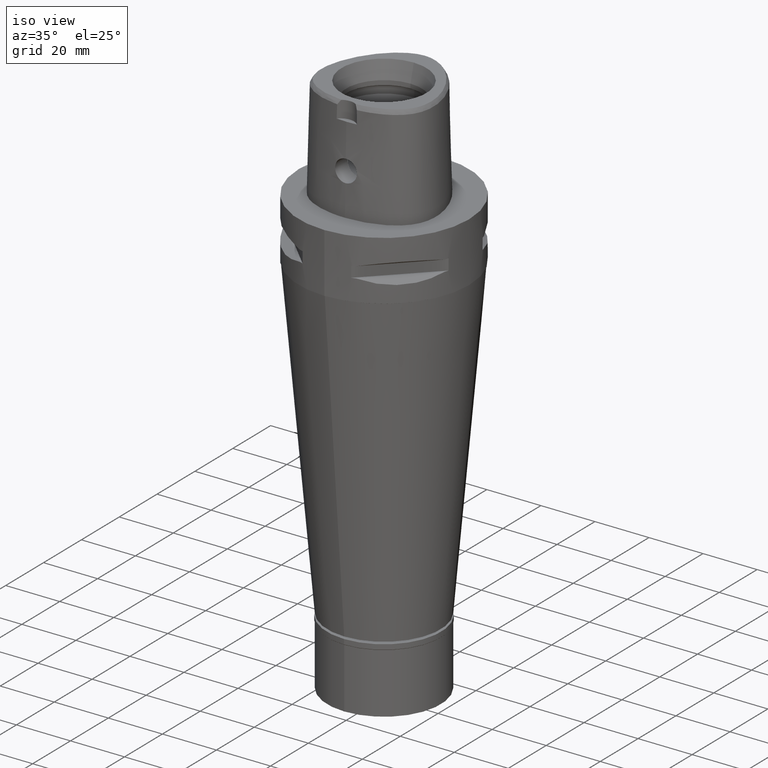
[diagram: clean part render]
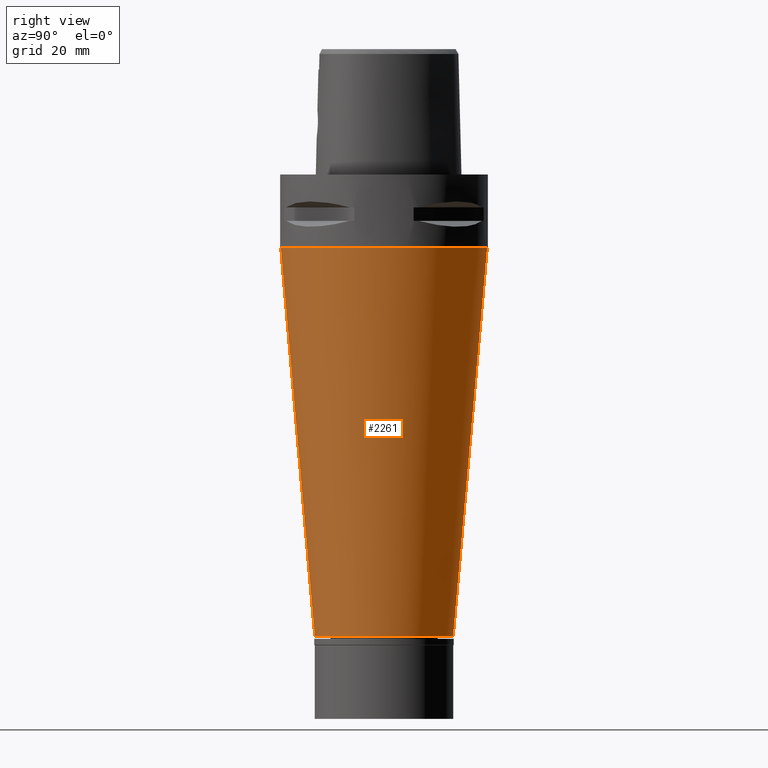
[diagram: tour spotlight — one face highlighted and labeled with its STEP entity id]
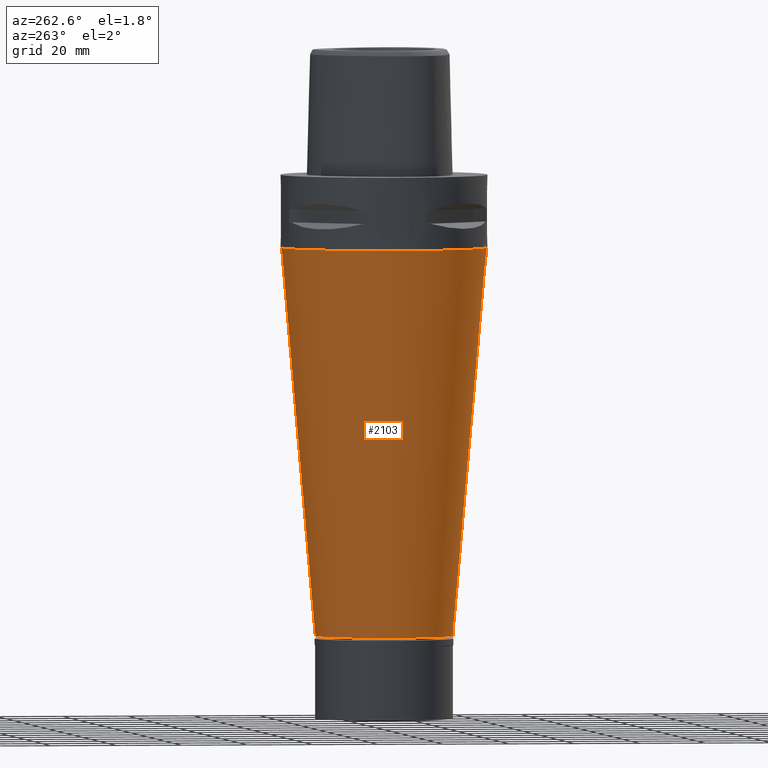
[diagram: tour spotlight — one face highlighted and labeled with its STEP entity id]
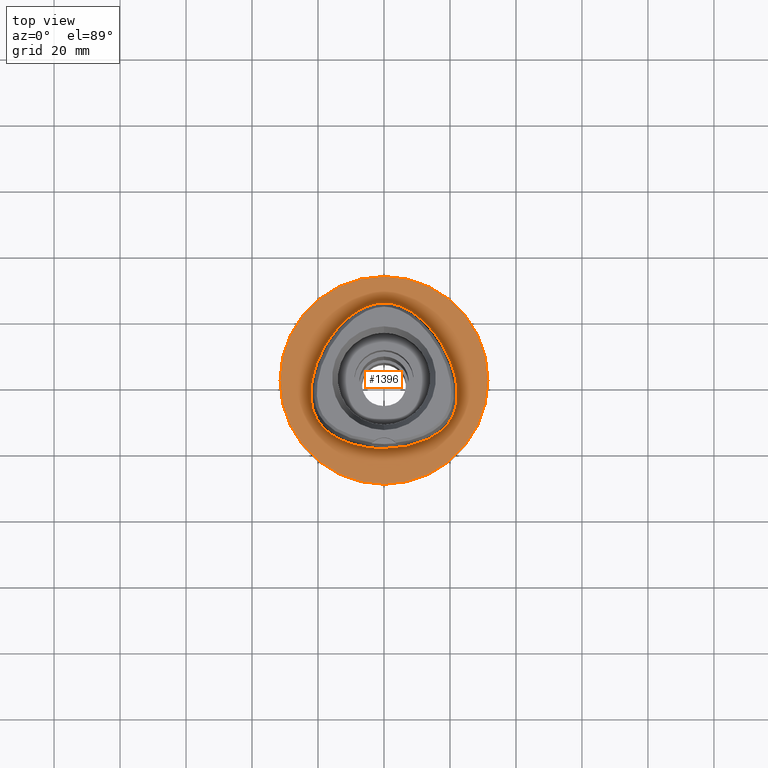
[diagram: tour spotlight — one face highlighted and labeled with its STEP entity id]
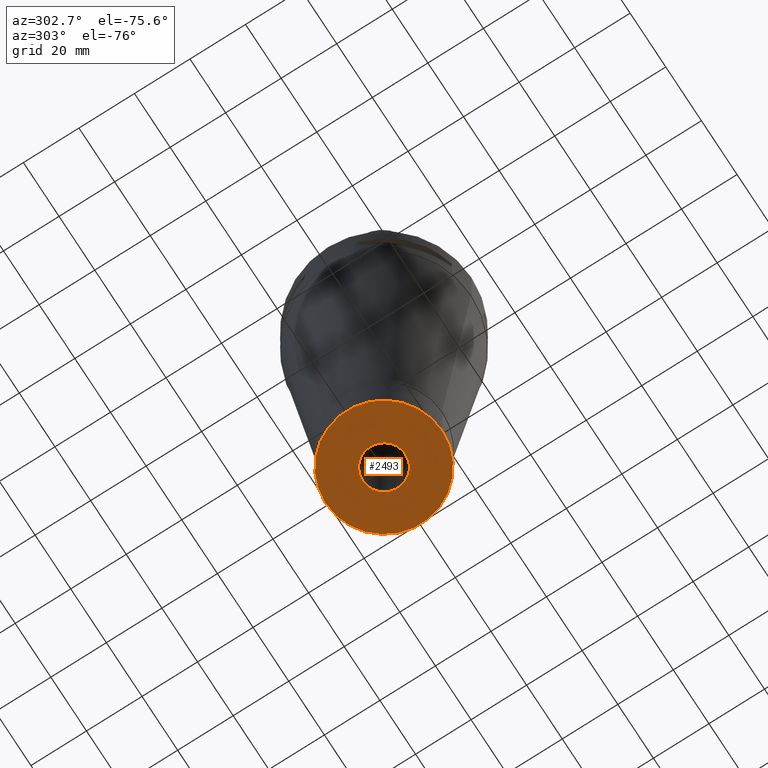
[diagram: tour spotlight — one face highlighted and labeled with its STEP entity id]
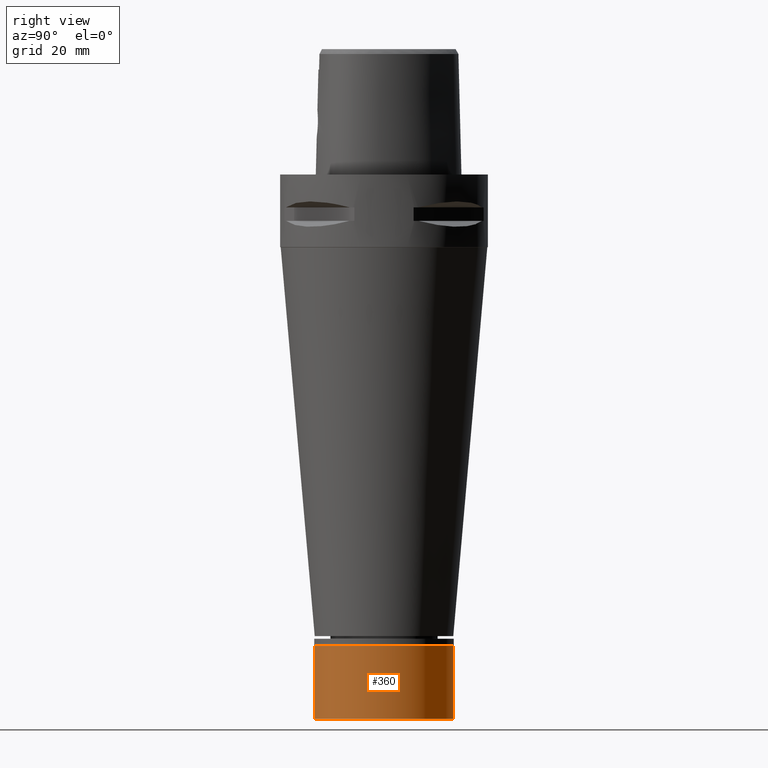
[diagram: tour spotlight — one face highlighted and labeled with its STEP entity id]
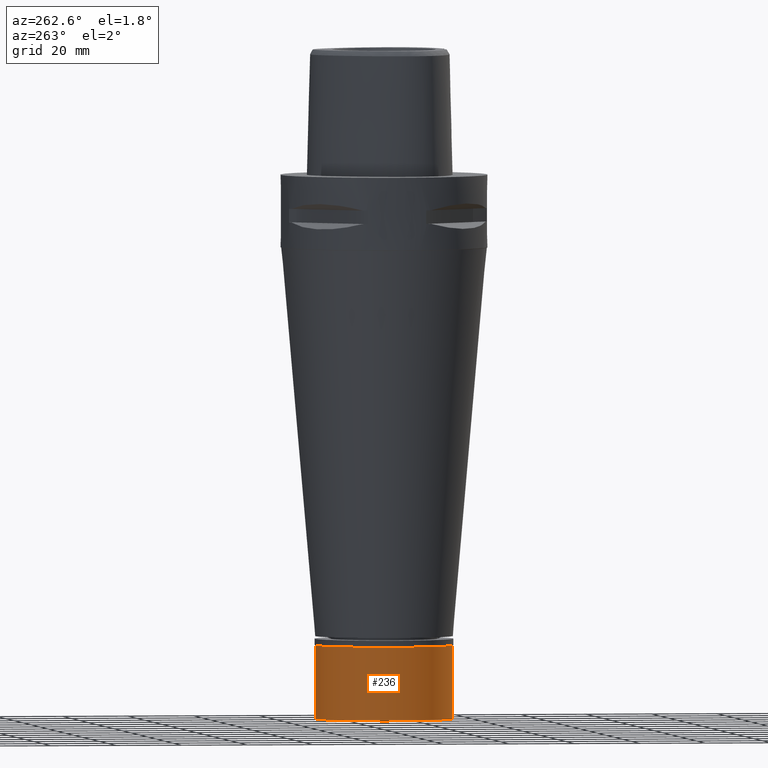
[diagram: tour spotlight — one face highlighted and labeled with its STEP entity id]
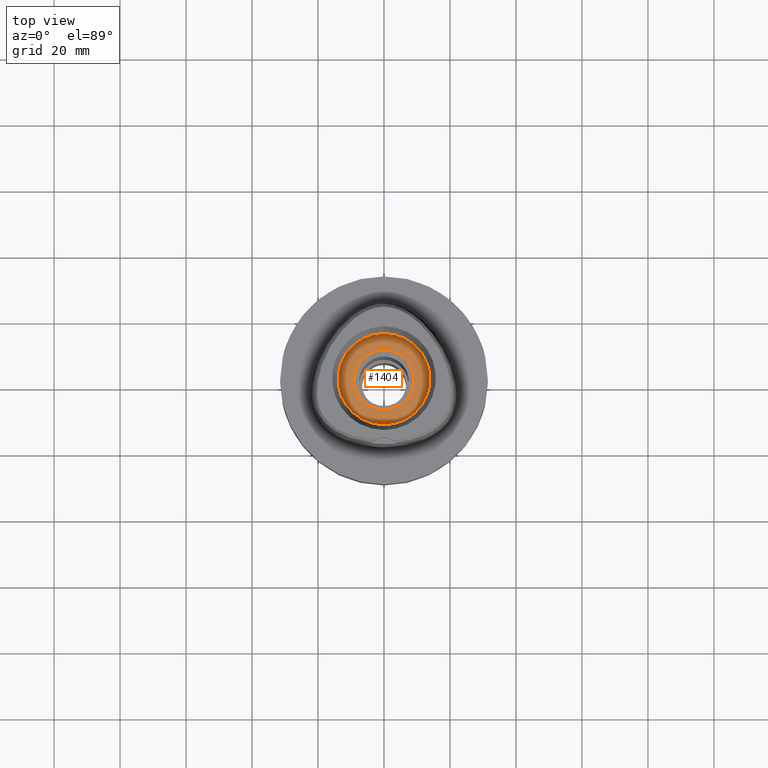
[diagram: tour spotlight — one face highlighted and labeled with its STEP entity id]
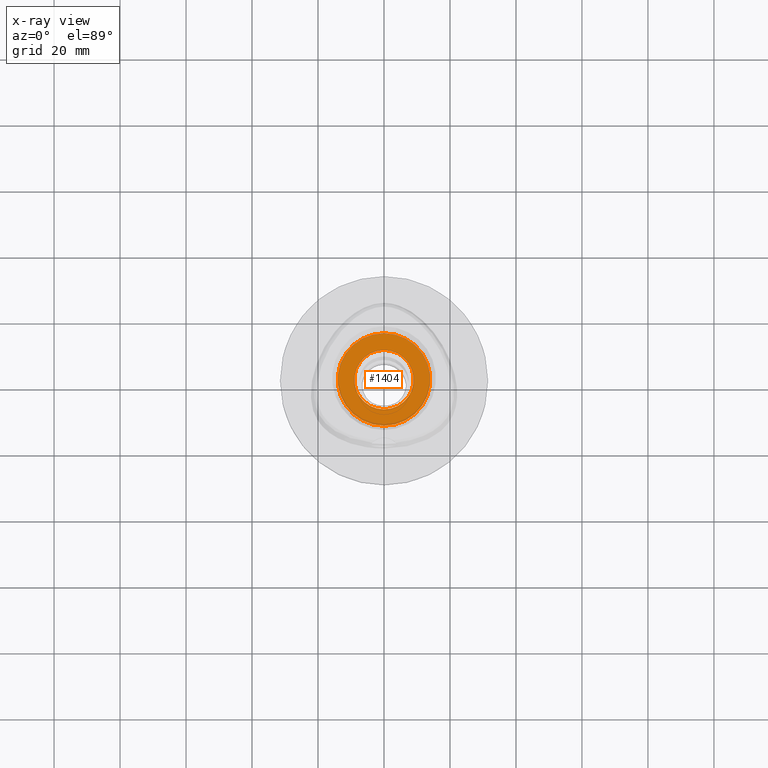
[diagram: x-ray of the same camera — body ghosted, this tour face saturated]
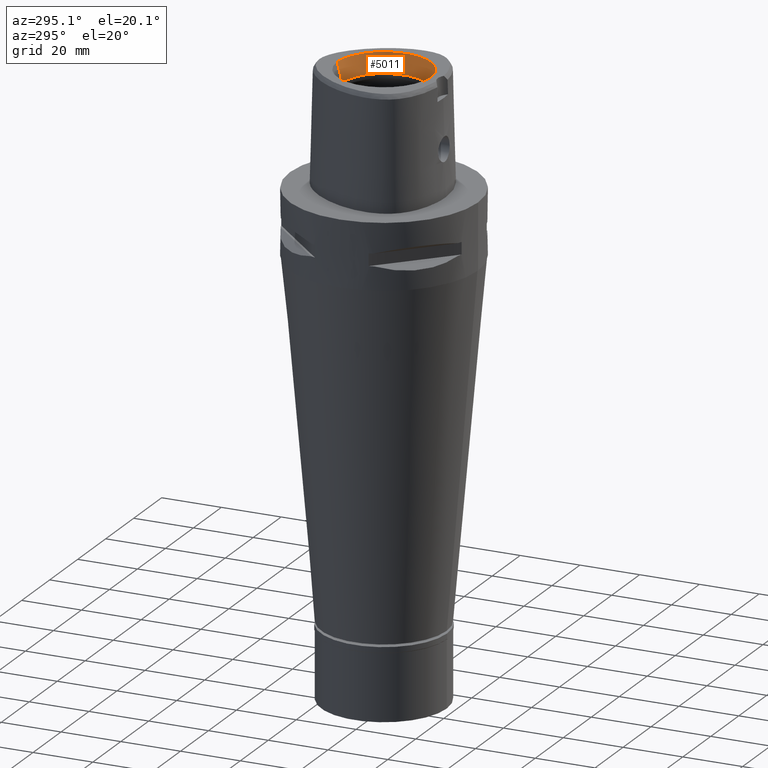
[diagram: tour spotlight — one face highlighted and labeled with its STEP entity id]
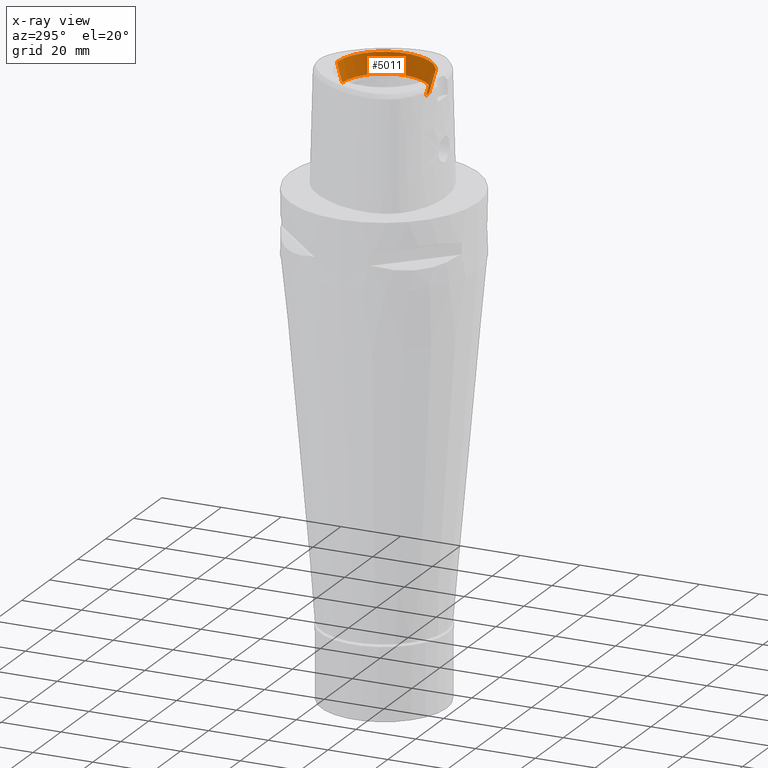
[diagram: x-ray of the same camera — body ghosted, this tour face saturated]
A machine part: a face-by-face anatomy tour. The part has 100 B-rep faces; the first image is the clean iso view, then the 8 largest visible faces are spotlighted one at a time (largest first), each with its STEP entity span.

Face 1 — right view, entity #2261. In plain terms, the highlighted conical surface has half-angle 5 deg.
Definition (entity closure, byte-faithful):
#21 = VECTOR ( 'NONE', #1304, 1000.000000000000114 ) ;
#27 = DIRECTION ( 'NONE',  ( 0.0000000000000000000, 1.000000000000000000, 0.0000000000000000000 ) ) ;
#143 = EDGE_LOOP ( 'NONE', ( #821, #178, #669, #1662 ) ) ;
#178 = ORIENTED_EDGE ( 'NONE', *, *, #697, .T. ) ;
#417 = LINE ( 'NONE', #2410, #3674 ) ;
#557 = EDGE_CURVE ( 'NONE', #2020, #3251, #4026, .T. ) ;
#571 = CARTESIAN_POINT ( 'NONE',  ( 0.0000000000000000000, -21.00000000000000000, -139.9000000000000057 ) ) ;
#577 = CONICAL_SURFACE ( 'NONE', #1965, 26.15308228167999971, 0.08726646259969973729 ) ;
#669 = ORIENTED_EDGE ( 'NONE', *, *, #4618, .T. ) ;
#697 = EDGE_CURVE ( 'NONE', #2020, #3028, #2833, .T. ) ;
#763 = CARTESIAN_POINT ( 'NONE',  ( 0.0000000000000000000, -31.30616456334999498, -22.10000000000000142 ) ) ;
#821 = ORIENTED_EDGE ( 'NONE', *, *, #557, .F. ) ;
#1304 = DIRECTION ( 'NONE',  ( 0.0000000000000000000, 0.08715574274764407992, -0.9961946980917467664 ) ) ;
#1595 = DIRECTION ( 'NONE',  ( 0.0000000000000000000, 0.0000000000000000000, 1.000000000000000000 ) ) ;
#1621 = AXIS2_PLACEMENT_3D ( 'NONE', #3159, #1595, #4698 ) ;
#1645 = AXIS2_PLACEMENT_3D ( 'NONE', #3274, #3171, #2071 ) ;
#1662 = ORIENTED_EDGE ( 'NONE', *, *, #4726, .F. ) ;
#1965 = AXIS2_PLACEMENT_3D ( 'NONE', #3527, #3227, #27 ) ;
#2020 = VERTEX_POINT ( 'NONE', #763 ) ;
#2071 = DIRECTION ( 'NONE',  ( 0.0000000000000000000, -1.000000000000000000, 0.0000000000000000000 ) ) ;
#2131 = CARTESIAN_POINT ( 'NONE',  ( 0.0000000000000000000, 21.00000000000000000, -139.9000000000000057 ) ) ;
#2261 = ADVANCED_FACE ( 'NONE', ( #2806 ), #577, .T. ) ;
#2354 = VERTEX_POINT ( 'NONE', #2131 ) ;
#2410 = CARTESIAN_POINT ( 'NONE',  ( 0.0000000000000000000, 31.30616456334999498, -22.10000000000000142 ) ) ;
#2806 = FACE_OUTER_BOUND ( 'NONE', #143, .T. ) ;
#2833 = LINE ( 'NONE', #4071, #21 ) ;
#3028 = VERTEX_POINT ( 'NONE', #571 ) ;
#3159 = CARTESIAN_POINT ( 'NONE',  ( 0.0000000000000000000, 0.0000000000000000000, -139.9000000000000057 ) ) ;
#3171 = DIRECTION ( 'NONE',  ( 0.0000000000000000000, 0.0000000000000000000, 1.000000000000000000 ) ) ;
#3227 = DIRECTION ( 'NONE',  ( 0.0000000000000000000, 0.0000000000000000000, 1.000000000000000000 ) ) ;
#3251 = VERTEX_POINT ( 'NONE', #4341 ) ;
#3274 = CARTESIAN_POINT ( 'NONE',  ( 0.0000000000000000000, 0.0000000000000000000, -22.10000000000000142 ) ) ;
#3527 = CARTESIAN_POINT ( 'NONE',  ( 0.0000000000000000000, 0.0000000000000000000, -81.00000000000000000 ) ) ;
#3674 = VECTOR ( 'NONE', #4338, 1000.000000000000114 ) ;
#4026 = CIRCLE ( 'NONE', #1645, 31.30616456335999587 ) ;
#4071 = CARTESIAN_POINT ( 'NONE',  ( 0.0000000000000000000, -31.30616456334999498, -22.10000000000000142 ) ) ;
#4276 = CIRCLE ( 'NONE', #1621, 21.00000000000000000 ) ;
#4338 = DIRECTION ( 'NONE',  ( 0.0000000000000000000, -0.08715574274764407992, -0.9961946980917467664 ) ) ;
#4341 = CARTESIAN_POINT ( 'NONE',  ( 0.0000000000000000000, 31.30616456334999498, -22.10000000000000142 ) ) ;
#4618 = EDGE_CURVE ( 'NONE', #3028, #2354, #4276, .T. ) ;
#4698 = DIRECTION ( 'NONE',  ( 0.0000000000000000000, -1.000000000000000000, 0.0000000000000000000 ) ) ;
#4726 = EDGE_CURVE ( 'NONE', #3251, #2354, #417, .T. ) ;

Face 2 — auxiliary view, entity #2103. In plain terms, the highlighted conical surface has half-angle 5 deg.
Definition (entity closure, byte-faithful):
#21 = VECTOR ( 'NONE', #1304, 1000.000000000000114 ) ;
#34 = ORIENTED_EDGE ( 'NONE', *, *, #4726, .T. ) ;
#351 = CARTESIAN_POINT ( 'NONE',  ( 0.0000000000000000000, 0.0000000000000000000, -81.00000000000000000 ) ) ;
#417 = LINE ( 'NONE', #2410, #3674 ) ;
#571 = CARTESIAN_POINT ( 'NONE',  ( 0.0000000000000000000, -21.00000000000000000, -139.9000000000000057 ) ) ;
#697 = EDGE_CURVE ( 'NONE', #2020, #3028, #2833, .T. ) ;
#751 = ORIENTED_EDGE ( 'NONE', *, *, #697, .F. ) ;
#763 = CARTESIAN_POINT ( 'NONE',  ( 0.0000000000000000000, -31.30616456334999498, -22.10000000000000142 ) ) ;
#1102 = DIRECTION ( 'NONE',  ( 0.0000000000000000000, 1.000000000000000000, 0.0000000000000000000 ) ) ;
#1161 = CONICAL_SURFACE ( 'NONE', #4994, 26.15308228167999971, 0.08726646259969973729 ) ;
#1295 = DIRECTION ( 'NONE',  ( 0.0000000000000000000, 0.0000000000000000000, 1.000000000000000000 ) ) ;
#1304 = DIRECTION ( 'NONE',  ( 0.0000000000000000000, 0.08715574274764407992, -0.9961946980917467664 ) ) ;
#1376 = AXIS2_PLACEMENT_3D ( 'NONE', #2026, #4035, #1615 ) ;
#1467 = DIRECTION ( 'NONE',  ( 0.0000000000000000000, 0.0000000000000000000, 1.000000000000000000 ) ) ;
#1479 = EDGE_LOOP ( 'NONE', ( #2416, #751, #2861, #34 ) ) ;
#1615 = DIRECTION ( 'NONE',  ( 0.0000000000000000000, -1.000000000000000000, 0.0000000000000000000 ) ) ;
#1716 = CARTESIAN_POINT ( 'NONE',  ( 0.0000000000000000000, 0.0000000000000000000, -139.9000000000000057 ) ) ;
#1950 = CIRCLE ( 'NONE', #1376, 31.30616456334999498 ) ;
#2020 = VERTEX_POINT ( 'NONE', #763 ) ;
#2026 = CARTESIAN_POINT ( 'NONE',  ( 0.0000000000000000000, 0.0000000000000000000, -22.10000000000000142 ) ) ;
#2103 = ADVANCED_FACE ( 'NONE', ( #3004 ), #1161, .T. ) ;
#2131 = CARTESIAN_POINT ( 'NONE',  ( 0.0000000000000000000, 21.00000000000000000, -139.9000000000000057 ) ) ;
#2354 = VERTEX_POINT ( 'NONE', #2131 ) ;
#2410 = CARTESIAN_POINT ( 'NONE',  ( 0.0000000000000000000, 31.30616456334999498, -22.10000000000000142 ) ) ;
#2416 = ORIENTED_EDGE ( 'NONE', *, *, #3461, .T. ) ;
#2833 = LINE ( 'NONE', #4071, #21 ) ;
#2861 = ORIENTED_EDGE ( 'NONE', *, *, #4687, .T. ) ;
#2877 = AXIS2_PLACEMENT_3D ( 'NONE', #1716, #1295, #4894 ) ;
#3004 = FACE_OUTER_BOUND ( 'NONE', #1479, .T. ) ;
#3028 = VERTEX_POINT ( 'NONE', #571 ) ;
#3251 = VERTEX_POINT ( 'NONE', #4341 ) ;
#3461 = EDGE_CURVE ( 'NONE', #2354, #3028, #3951, .T. ) ;
#3674 = VECTOR ( 'NONE', #4338, 1000.000000000000114 ) ;
#3951 = CIRCLE ( 'NONE', #2877, 21.00000000000000000 ) ;
#4035 = DIRECTION ( 'NONE',  ( 0.0000000000000000000, 0.0000000000000000000, -1.000000000000000000 ) ) ;
#4071 = CARTESIAN_POINT ( 'NONE',  ( 0.0000000000000000000, -31.30616456334999498, -22.10000000000000142 ) ) ;
#4338 = DIRECTION ( 'NONE',  ( 0.0000000000000000000, -0.08715574274764407992, -0.9961946980917467664 ) ) ;
#4341 = CARTESIAN_POINT ( 'NONE',  ( 0.0000000000000000000, 31.30616456334999498, -22.10000000000000142 ) ) ;
#4687 = EDGE_CURVE ( 'NONE', #2020, #3251, #1950, .T. ) ;
#4726 = EDGE_CURVE ( 'NONE', #3251, #2354, #417, .T. ) ;
#4894 = DIRECTION ( 'NONE',  ( 0.0000000000000000000, 1.000000000000000000, 0.0000000000000000000 ) ) ;
#4994 = AXIS2_PLACEMENT_3D ( 'NONE', #351, #1467, #1102 ) ;

Face 3 — top view, entity #1396. In plain terms, the highlighted planar face has unit normal (0, 0, -1).
Definition (entity closure, byte-faithful):
#38 = CARTESIAN_POINT ( 'NONE',  ( -0.8548392447311998765, 23.47500003422294768, -1.368989697888818927E-06 ) ) ;
#114 = CARTESIAN_POINT ( 'NONE',  ( -11.23259757903171518, -18.89324221984548302, -1.368989697888818927E-06 ) ) ;
#153 = CARTESIAN_POINT ( 'NONE',  ( 6.341471019211626370, -20.29812500000441844, 8.272462576064400094E-14 ) ) ;
#310 = DIRECTION ( 'NONE',  ( 0.0000000000000000000, 0.0000000000000000000, -1.000000000000000000 ) ) ;
#340 = AXIS2_PLACEMENT_3D ( 'NONE', #401, #3911, #704 ) ;
#350 = B_SPLINE_CURVE_WITH_KNOTS ( 'NONE', 3,
 ( #4744, #38, #2024, #472, #773, #4775, #1566, #3541, #2328, #4004, #2817, #3621, #496, #4389, #2738, #415, #2432, #2051, #2384, #114, #1593, #448, #3157 ),
 .UNSPECIFIED., .F., .F.,
 ( 4, 1, 1, 1, 1, 1, 1, 1, 1, 1, 1, 1, 1, 1, 1, 1, 1, 1, 1, 1, 4 ),
 ( 0.0000000000000000000, 0.04166666666724999635, 0.08333333333387001052, 0.1250000000004999889, 0.1666666666672000086, 0.2500000000004000134, 0.3333333333335999904, 0.4166666666670000296, 0.5000000000001999512, 0.5416666666668999985, 0.5833333333333999837, 0.6250000000001000311, 0.6458333333333999837, 0.6666666666667000474, 0.6875000000000000000, 0.7083333333333000637, 0.7500000000000000000, 0.7916666666666000163, 0.8333333333332000326, 0.9166666666664999852, 1.000000000000000000 ),
 .UNSPECIFIED. ) ;
#401 = CARTESIAN_POINT ( 'NONE',  ( 0.0000000000000000000, 0.0000000000000000000, 0.0000000000000000000 ) ) ;
#415 = CARTESIAN_POINT ( 'NONE',  ( -19.64947368636820002, -12.82525392640435946, -1.368989697888818927E-06 ) ) ;
#448 = CARTESIAN_POINT ( 'NONE',  ( -2.113823675098791544, -20.67500003422133759, -1.368989697888818927E-06 ) ) ;
#472 = CARTESIAN_POINT ( 'NONE',  ( -5.098437030057756836, 22.52602542253844220, -1.368989697888818927E-06 ) ) ;
#496 = CARTESIAN_POINT ( 'NONE',  ( -21.55524829301685941, -8.996025400410394113, -1.368989697888818927E-06 ) ) ;
#594 = CARTESIAN_POINT ( 'NONE',  ( 22.05732874321672554, -6.847636718749787299, 8.272462576064398831E-14 ) ) ;
#704 = DIRECTION ( 'NONE',  ( 0.0000000000000000000, -1.000000000000000000, 0.0000000000000000000 ) ) ;
#723 = DIRECTION ( 'NONE',  ( 0.0000000000000000000, -1.000000000000000000, 0.0000000000000000000 ) ) ;
#773 = CARTESIAN_POINT ( 'NONE',  ( -7.571159451690396835, 21.31457034212785828, -1.368989697888818927E-06 ) ) ;
#870 = EDGE_LOOP ( 'NONE', ( #3656, #1780 ) ) ;
#936 = CARTESIAN_POINT ( 'NONE',  ( 20.74942740879365033, 4.657187499999517755, 8.272462576064398831E-14 ) ) ;
#976 = CARTESIAN_POINT ( 'NONE',  ( 14.67337964419171747, -17.21410156250057355, 8.272462576064398831E-14 ) ) ;
#1030 = CARTESIAN_POINT ( 'NONE',  ( 2.113823673067903197, -20.67499999999817462, 8.272462576064398831E-14 ) ) ;
#1314 = CARTESIAN_POINT ( 'NONE',  ( 18.56841065141249203, -14.16937988280826666, 8.272462576064398831E-14 ) ) ;
#1316 = DIRECTION ( 'NONE',  ( 0.0000000000000000000, 1.000000000000000000, 0.0000000000000000000 ) ) ;
#1339 = CARTESIAN_POINT ( 'NONE',  ( 3.799129736973999684E-11, 23.47499999999000053, 6.972200594645999482E-14 ) ) ;
#1379 = CARTESIAN_POINT ( 'NONE',  ( 20.93173252211499857, -10.60431640624921812, 8.272462576064398831E-14 ) ) ;
#1396 = ADVANCED_FACE ( 'NONE', ( #4731, #4216 ), #3887, .F. ) ;
#1566 = CARTESIAN_POINT ( 'NONE',  ( -14.40795641587533815, 15.64093752220498779, -1.368989697888818927E-06 ) ) ;
#1593 = CARTESIAN_POINT ( 'NONE',  ( -6.341471025292675812, -20.29812503388158618, -1.368989697888818927E-06 ) ) ;
#1679 = ORIENTED_EDGE ( 'NONE', *, *, #2747, .F. ) ;
#1764 = CARTESIAN_POINT ( 'NONE',  ( 7.571159434350515305, 21.31457031249845713, 8.272462576064398831E-14 ) ) ;
#1780 = ORIENTED_EDGE ( 'NONE', *, *, #4948, .F. ) ;
#2024 = CARTESIAN_POINT ( 'NONE',  ( -2.564517733991961368, 23.29328128370302053, -1.368989697888818927E-06 ) ) ;
#2051 = CARTESIAN_POINT ( 'NONE',  ( -16.95889174717596859, -15.67838869888941034, -1.368989697888818927E-06 ) ) ;
#2116 = VERTEX_POINT ( 'NONE', #2647 ) ;
#2147 = CARTESIAN_POINT ( 'NONE',  ( 22.24453907854652357, -4.100468750000057838, 8.272462576064398831E-14 ) ) ;
#2238 = B_SPLINE_CURVE_WITH_KNOTS ( 'NONE', 3,
 ( #4441, #1030, #153, #4825, #976, #3356, #1314, #2866, #2528, #1379, #4058, #594, #2147, #2890, #936, #4922, #3719, #3287, #1764, #2933, #4851, #3331, #1339 ),
 .UNSPECIFIED., .F., .F.,
 ( 4, 1, 1, 1, 1, 1, 1, 1, 1, 1, 1, 1, 1, 1, 1, 1, 1, 1, 1, 1, 4 ),
 ( 0.0000000000000000000, 0.08333333333337000770, 0.1666666666667000196, 0.2083333333333000081, 0.2500000000000000000, 0.2916666666666999919, 0.3124999999998999689, 0.3333333333332000326, 0.3541666666666000163, 0.3749999999998999689, 0.4166666666666000163, 0.4583333333332000326, 0.4999999999998999689, 0.5833333333331000015, 0.6666666666664999852, 0.7499999999998000488, 0.8333333333329999704, 0.8749999999997000177, 0.9166666666664000651, 0.9583333333329999704, 1.000000000000000000 ),
 .UNSPECIFIED. ) ;
#2293 = AXIS2_PLACEMENT_3D ( 'NONE', #2845, #3721, #1316 ) ;
#2328 = CARTESIAN_POINT ( 'NONE',  ( -20.74942744117980808, 4.657187511669165225, -1.368989697888818927E-06 ) ) ;
#2384 = CARTESIAN_POINT ( 'NONE',  ( -14.67337966118758885, -17.21410159233150949, -1.368989697888818927E-06 ) ) ;
#2432 = CARTESIAN_POINT ( 'NONE',  ( -18.56841067635331655, -14.16937990642837164, -1.368989697888818927E-06 ) ) ;
#2528 = CARTESIAN_POINT ( 'NONE',  ( 20.34961798556690837, -11.74885742187212223, 8.272462576064398831E-14 ) ) ;
#2647 = CARTESIAN_POINT ( 'NONE',  ( 3.799129736973999684E-11, 23.47499999999000053, 6.972200594645999482E-14 ) ) ;
#2686 = ORIENTED_EDGE ( 'NONE', *, *, #3333, .F. ) ;
#2703 = AXIS2_PLACEMENT_3D ( 'NONE', #5059, #310, #723 ) ;
#2738 = CARTESIAN_POINT ( 'NONE',  ( -20.34961801526063141, -11.74885743901240431, -1.368989697888818927E-06 ) ) ;
#2747 = EDGE_CURVE ( 'NONE', #3342, #4889, #4182, .T. ) ;
#2817 = CARTESIAN_POINT ( 'NONE',  ( -22.24453911287769614, -4.100468749798530155, -1.368989697888818927E-06 ) ) ;
#2845 = CARTESIAN_POINT ( 'NONE',  ( 0.0000000000000000000, 0.0000000000000000000, 0.0000000000000000000 ) ) ;
#2866 = CARTESIAN_POINT ( 'NONE',  ( 19.64947365863153905, -12.82525390625595918, 8.272462576064398831E-14 ) ) ;
#2890 = CARTESIAN_POINT ( 'NONE',  ( 21.97832647786808380, -0.2810937499999818789, 8.272462576064398831E-14 ) ) ;
#2933 = CARTESIAN_POINT ( 'NONE',  ( 5.098437017283806050, 22.52602539062440812, 8.272462576064398831E-14 ) ) ;
#3157 = CARTESIAN_POINT ( 'NONE',  ( -5.544117086856001062E-12, -20.67499999999999716, 7.268260067878999272E-14 ) ) ;
#3239 = CARTESIAN_POINT ( 'NONE',  ( -5.544117086856001062E-12, -20.67499999999999716, 7.268260067878999272E-14 ) ) ;
#3263 = CARTESIAN_POINT ( 'NONE',  ( 0.0000000000000000000, 31.50000000000000000, 0.0000000000000000000 ) ) ;
#3287 = CARTESIAN_POINT ( 'NONE',  ( 10.74572891058595836, 19.17433593750250154, 8.272462576064398831E-14 ) ) ;
#3331 = CARTESIAN_POINT ( 'NONE',  ( 0.8548392423473054613, 23.47500000000443876, 8.272462576064398831E-14 ) ) ;
#3333 = EDGE_CURVE ( 'NONE', #4889, #3342, #4107, .T. ) ;
#3342 = VERTEX_POINT ( 'NONE', #4082 ) ;
#3356 = CARTESIAN_POINT ( 'NONE',  ( 16.95889172593307848, -15.67838867187729868, 8.272462576064398831E-14 ) ) ;
#3541 = CARTESIAN_POINT ( 'NONE',  ( -18.06826691505381177, 10.43171876720562530, -1.368989697888818927E-06 ) ) ;
#3621 = CARTESIAN_POINT ( 'NONE',  ( -22.05732877724006968, -6.847636723639458189, -1.368989697888818927E-06 ) ) ;
#3656 = ORIENTED_EDGE ( 'NONE', *, *, #3803, .F. ) ;
#3719 = CARTESIAN_POINT ( 'NONE',  ( 14.40795638957902547, 15.64093750000789385, 8.272462576064398831E-14 ) ) ;
#3721 = DIRECTION ( 'NONE',  ( 0.0000000000000000000, 0.0000000000000000000, -1.000000000000000000 ) ) ;
#3803 = EDGE_CURVE ( 'NONE', #2116, #3806, #350, .T. ) ;
#3806 = VERTEX_POINT ( 'NONE', #3239 ) ;
#3887 = PLANE ( 'NONE',  #340 ) ;
#3911 = DIRECTION ( 'NONE',  ( 0.0000000000000000000, 0.0000000000000000000, -1.000000000000000000 ) ) ;
#4004 = CARTESIAN_POINT ( 'NONE',  ( -21.97832651175645324, -0.2810937440124895992, -1.368989697888818927E-06 ) ) ;
#4058 = CARTESIAN_POINT ( 'NONE',  ( 21.55524826009921924, -8.996025390625055351, 8.272462576064398831E-14 ) ) ;
#4082 = CARTESIAN_POINT ( 'NONE',  ( 0.0000000000000000000, -31.50000000000000000, 0.0000000000000000000 ) ) ;
#4107 = CIRCLE ( 'NONE', #2293, 31.50000000000000000 ) ;
#4182 = CIRCLE ( 'NONE', #2703, 31.50000000000000000 ) ;
#4212 = EDGE_LOOP ( 'NONE', ( #2686, #1679 ) ) ;
#4216 = FACE_BOUND ( 'NONE', #870, .T. ) ;
#4389 = CARTESIAN_POINT ( 'NONE',  ( -20.93173255342915340, -10.60431642019623766, -1.368989697888818927E-06 ) ) ;
#4441 = CARTESIAN_POINT ( 'NONE',  ( -5.544117086856001062E-12, -20.67499999999999716, 7.268260067878999272E-14 ) ) ;
#4731 = FACE_OUTER_BOUND ( 'NONE', #4212, .T. ) ;
#4744 = CARTESIAN_POINT ( 'NONE',  ( 3.799129736973999684E-11, 23.47499999999000053, 6.972200594645999482E-14 ) ) ;
#4775 = CARTESIAN_POINT ( 'NONE',  ( -10.74572893272436502, 19.17433596385689754, -1.368989697888818927E-06 ) ) ;
#4825 = CARTESIAN_POINT ( 'NONE',  ( 11.23259756727171599, -18.89324218749731443, 8.272462576064398831E-14 ) ) ;
#4851 = CARTESIAN_POINT ( 'NONE',  ( 2.564517726975326983, 23.29328124999574356, 8.272462576064398831E-14 ) ) ;
#4889 = VERTEX_POINT ( 'NONE', #3263 ) ;
#4922 = CARTESIAN_POINT ( 'NONE',  ( 18.06826688526536628, 10.43171875000152404, 8.272462576064398831E-14 ) ) ;
#4948 = EDGE_CURVE ( 'NONE', #3806, #2116, #2238, .T. ) ;
#5059 = CARTESIAN_POINT ( 'NONE',  ( 0.0000000000000000000, 0.0000000000000000000, 0.0000000000000000000 ) ) ;

Face 4 — auxiliary view, entity #2493. In plain terms, the highlighted planar face has unit normal (0, 0, -1).
Definition (entity closure, byte-faithful):
#24 = CARTESIAN_POINT ( 'NONE',  ( 0.0000000000000000000, 0.0000000000000000000, -24.29999999999999716 ) ) ;
#95 = CIRCLE ( 'NONE', #2939, 21.00000000000000000 ) ;
#194 = EDGE_LOOP ( 'NONE', ( #4677, #534 ) ) ;
#288 = DIRECTION ( 'NONE',  ( 0.0000000000000000000, 0.0000000000000000000, 1.000000000000000000 ) ) ;
#329 = CIRCLE ( 'NONE', #992, 7.700000000000000178 ) ;
#530 = EDGE_CURVE ( 'NONE', #1504, #3281, #329, .T. ) ;
#534 = ORIENTED_EDGE ( 'NONE', *, *, #1386, .F. ) ;
#547 = CARTESIAN_POINT ( 'NONE',  ( 0.0000000000000000000, 7.700000000000000178, -24.29999999999999716 ) ) ;
#624 = DIRECTION ( 'NONE',  ( 0.0000000000000000000, 0.0000000000000000000, -1.000000000000000000 ) ) ;
#636 = CARTESIAN_POINT ( 'NONE',  ( 0.0000000000000000000, 21.00000000000000000, -24.29999999999999716 ) ) ;
#649 = CARTESIAN_POINT ( 'NONE',  ( 0.0000000000000000000, -21.00000000000000000, -24.29999999999999716 ) ) ;
#943 = CARTESIAN_POINT ( 'NONE',  ( 0.0000000000000000000, 0.0000000000000000000, -24.29999999999999716 ) ) ;
#992 = AXIS2_PLACEMENT_3D ( 'NONE', #1684, #4051, #2015 ) ;
#1178 = ORIENTED_EDGE ( 'NONE', *, *, #530, .F. ) ;
#1386 = EDGE_CURVE ( 'NONE', #2661, #4790, #1795, .T. ) ;
#1438 = DIRECTION ( 'NONE',  ( 0.0000000000000000000, 1.000000000000000000, 0.0000000000000000000 ) ) ;
#1504 = VERTEX_POINT ( 'NONE', #3114 ) ;
#1562 = AXIS2_PLACEMENT_3D ( 'NONE', #943, #624, #2495 ) ;
#1684 = CARTESIAN_POINT ( 'NONE',  ( 0.0000000000000000000, 0.0000000000000000000, -24.29999999999999716 ) ) ;
#1768 = DIRECTION ( 'NONE',  ( 0.0000000000000000000, 1.000000000000000000, 0.0000000000000000000 ) ) ;
#1774 = ORIENTED_EDGE ( 'NONE', *, *, #4351, .F. ) ;
#1795 = CIRCLE ( 'NONE', #2531, 21.00000000000000000 ) ;
#1931 = DIRECTION ( 'NONE',  ( 0.0000000000000000000, -1.000000000000000000, 0.0000000000000000000 ) ) ;
#2015 = DIRECTION ( 'NONE',  ( 0.0000000000000000000, -1.000000000000000000, 0.0000000000000000000 ) ) ;
#2067 = CIRCLE ( 'NONE', #4932, 7.700000000000000178 ) ;
#2107 = EDGE_LOOP ( 'NONE', ( #1774, #1178 ) ) ;
#2493 = ADVANCED_FACE ( 'NONE', ( #4139, #2897 ), #2879, .T. ) ;
#2495 = DIRECTION ( 'NONE',  ( 0.0000000000000000000, -1.000000000000000000, 0.0000000000000000000 ) ) ;
#2531 = AXIS2_PLACEMENT_3D ( 'NONE', #24, #3059, #1931 ) ;
#2615 = CARTESIAN_POINT ( 'NONE',  ( 0.0000000000000000000, 0.0000000000000000000, -24.29999999999999716 ) ) ;
#2661 = VERTEX_POINT ( 'NONE', #649 ) ;
#2699 = EDGE_CURVE ( 'NONE', #4790, #2661, #95, .T. ) ;
#2879 = PLANE ( 'NONE',  #1562 ) ;
#2897 = FACE_BOUND ( 'NONE', #2107, .T. ) ;
#2939 = AXIS2_PLACEMENT_3D ( 'NONE', #2615, #288, #1438 ) ;
#3059 = DIRECTION ( 'NONE',  ( 0.0000000000000000000, 0.0000000000000000000, 1.000000000000000000 ) ) ;
#3114 = CARTESIAN_POINT ( 'NONE',  ( 0.0000000000000000000, -7.700000000000000178, -24.29999999999999716 ) ) ;
#3281 = VERTEX_POINT ( 'NONE', #547 ) ;
#4051 = DIRECTION ( 'NONE',  ( 0.0000000000000000000, 0.0000000000000000000, -1.000000000000000000 ) ) ;
#4110 = CARTESIAN_POINT ( 'NONE',  ( 0.0000000000000000000, 0.0000000000000000000, -24.29999999999999716 ) ) ;
#4139 = FACE_OUTER_BOUND ( 'NONE', #194, .T. ) ;
#4351 = EDGE_CURVE ( 'NONE', #3281, #1504, #2067, .T. ) ;
#4514 = DIRECTION ( 'NONE',  ( 0.0000000000000000000, 0.0000000000000000000, -1.000000000000000000 ) ) ;
#4677 = ORIENTED_EDGE ( 'NONE', *, *, #2699, .F. ) ;
#4790 = VERTEX_POINT ( 'NONE', #636 ) ;
#4932 = AXIS2_PLACEMENT_3D ( 'NONE', #4110, #4514, #1768 ) ;

Face 5 — right view, entity #360. In plain terms, the highlighted cylindrical surface (partial cylindrical patch) has radius 21 mm, axis along (0, 0, -1).
Definition (entity closure, byte-faithful):
#24 = CARTESIAN_POINT ( 'NONE',  ( 0.0000000000000000000, 0.0000000000000000000, -24.29999999999999716 ) ) ;
#52 = CYLINDRICAL_SURFACE ( 'NONE', #663, 21.00000000000000000 ) ;
#297 = EDGE_CURVE ( 'NONE', #4386, #972, #4505, .T. ) ;
#360 = ADVANCED_FACE ( 'NONE', ( #3532 ), #52, .T. ) ;
#400 = EDGE_CURVE ( 'NONE', #4386, #4790, #1207, .T. ) ;
#611 = DIRECTION ( 'NONE',  ( 0.0000000000000000000, 0.0000000000000000000, -1.000000000000000000 ) ) ;
#636 = CARTESIAN_POINT ( 'NONE',  ( 0.0000000000000000000, 21.00000000000000000, -24.29999999999999716 ) ) ;
#649 = CARTESIAN_POINT ( 'NONE',  ( 0.0000000000000000000, -21.00000000000000000, -24.29999999999999716 ) ) ;
#663 = AXIS2_PLACEMENT_3D ( 'NONE', #2701, #4606, #1549 ) ;
#815 = DIRECTION ( 'NONE',  ( 0.0000000000000000000, 0.0000000000000000000, -1.000000000000000000 ) ) ;
#972 = VERTEX_POINT ( 'NONE', #2990 ) ;
#1097 = ORIENTED_EDGE ( 'NONE', *, *, #400, .F. ) ;
#1207 = LINE ( 'NONE', #4657, #1395 ) ;
#1386 = EDGE_CURVE ( 'NONE', #2661, #4790, #1795, .T. ) ;
#1395 = VECTOR ( 'NONE', #2754, 1000.000000000000000 ) ;
#1462 = EDGE_LOOP ( 'NONE', ( #3108, #2484, #1893, #1097 ) ) ;
#1549 = DIRECTION ( 'NONE',  ( 0.0000000000000000000, -1.000000000000000000, 0.0000000000000000000 ) ) ;
#1795 = CIRCLE ( 'NONE', #2531, 21.00000000000000000 ) ;
#1893 = ORIENTED_EDGE ( 'NONE', *, *, #1386, .T. ) ;
#1931 = DIRECTION ( 'NONE',  ( 0.0000000000000000000, -1.000000000000000000, 0.0000000000000000000 ) ) ;
#1978 = VECTOR ( 'NONE', #611, 1000.000000000000000 ) ;
#2161 = CARTESIAN_POINT ( 'NONE',  ( 0.0000000000000000000, -21.00000000000000000, -2.000000000000000000 ) ) ;
#2262 = CARTESIAN_POINT ( 'NONE',  ( 0.0000000000000000000, 0.0000000000000000000, -2.000000000000000000 ) ) ;
#2484 = ORIENTED_EDGE ( 'NONE', *, *, #3664, .T. ) ;
#2531 = AXIS2_PLACEMENT_3D ( 'NONE', #24, #3059, #1931 ) ;
#2661 = VERTEX_POINT ( 'NONE', #649 ) ;
#2701 = CARTESIAN_POINT ( 'NONE',  ( 0.0000000000000000000, 0.0000000000000000000, 0.0000000000000000000 ) ) ;
#2754 = DIRECTION ( 'NONE',  ( 0.0000000000000000000, 0.0000000000000000000, -1.000000000000000000 ) ) ;
#2869 = AXIS2_PLACEMENT_3D ( 'NONE', #2262, #815, #3501 ) ;
#2990 = CARTESIAN_POINT ( 'NONE',  ( 0.0000000000000000000, -21.00000000000000000, -2.000000000000000000 ) ) ;
#3059 = DIRECTION ( 'NONE',  ( 0.0000000000000000000, 0.0000000000000000000, 1.000000000000000000 ) ) ;
#3108 = ORIENTED_EDGE ( 'NONE', *, *, #297, .T. ) ;
#3336 = CARTESIAN_POINT ( 'NONE',  ( 0.0000000000000000000, 21.00000000000000000, -2.000000000000000000 ) ) ;
#3501 = DIRECTION ( 'NONE',  ( 0.0000000000000000000, 1.000000000000000000, 0.0000000000000000000 ) ) ;
#3532 = FACE_OUTER_BOUND ( 'NONE', #1462, .T. ) ;
#3664 = EDGE_CURVE ( 'NONE', #972, #2661, #4499, .T. ) ;
#4386 = VERTEX_POINT ( 'NONE', #3336 ) ;
#4499 = LINE ( 'NONE', #2161, #1978 ) ;
#4505 = CIRCLE ( 'NONE', #2869, 21.00000000000000000 ) ;
#4606 = DIRECTION ( 'NONE',  ( 0.0000000000000000000, 0.0000000000000000000, -1.000000000000000000 ) ) ;
#4657 = CARTESIAN_POINT ( 'NONE',  ( 0.0000000000000000000, 21.00000000000000000, -2.000000000000000000 ) ) ;
#4790 = VERTEX_POINT ( 'NONE', #636 ) ;

Face 6 — auxiliary view, entity #236. In plain terms, the highlighted cylindrical surface (partial cylindrical patch) has radius 21 mm, axis along (0, 0, -1).
Definition (entity closure, byte-faithful):
#73 = CARTESIAN_POINT ( 'NONE',  ( 0.0000000000000000000, 0.0000000000000000000, -2.000000000000000000 ) ) ;
#95 = CIRCLE ( 'NONE', #2939, 21.00000000000000000 ) ;
#236 = ADVANCED_FACE ( 'NONE', ( #2524 ), #3328, .T. ) ;
#288 = DIRECTION ( 'NONE',  ( 0.0000000000000000000, 0.0000000000000000000, 1.000000000000000000 ) ) ;
#400 = EDGE_CURVE ( 'NONE', #4386, #4790, #1207, .T. ) ;
#470 = EDGE_LOOP ( 'NONE', ( #1309, #4900, #4834, #4203 ) ) ;
#611 = DIRECTION ( 'NONE',  ( 0.0000000000000000000, 0.0000000000000000000, -1.000000000000000000 ) ) ;
#636 = CARTESIAN_POINT ( 'NONE',  ( 0.0000000000000000000, 21.00000000000000000, -24.29999999999999716 ) ) ;
#649 = CARTESIAN_POINT ( 'NONE',  ( 0.0000000000000000000, -21.00000000000000000, -24.29999999999999716 ) ) ;
#707 = EDGE_CURVE ( 'NONE', #972, #4386, #3779, .T. ) ;
#972 = VERTEX_POINT ( 'NONE', #2990 ) ;
#1078 = CARTESIAN_POINT ( 'NONE',  ( 0.0000000000000000000, 0.0000000000000000000, 0.0000000000000000000 ) ) ;
#1207 = LINE ( 'NONE', #4657, #1395 ) ;
#1309 = ORIENTED_EDGE ( 'NONE', *, *, #2699, .T. ) ;
#1395 = VECTOR ( 'NONE', #2754, 1000.000000000000000 ) ;
#1438 = DIRECTION ( 'NONE',  ( 0.0000000000000000000, 1.000000000000000000, 0.0000000000000000000 ) ) ;
#1731 = DIRECTION ( 'NONE',  ( 0.0000000000000000000, 0.0000000000000000000, -1.000000000000000000 ) ) ;
#1978 = VECTOR ( 'NONE', #611, 1000.000000000000000 ) ;
#2161 = CARTESIAN_POINT ( 'NONE',  ( 0.0000000000000000000, -21.00000000000000000, -2.000000000000000000 ) ) ;
#2469 = AXIS2_PLACEMENT_3D ( 'NONE', #73, #1731, #3322 ) ;
#2524 = FACE_OUTER_BOUND ( 'NONE', #470, .T. ) ;
#2615 = CARTESIAN_POINT ( 'NONE',  ( 0.0000000000000000000, 0.0000000000000000000, -24.29999999999999716 ) ) ;
#2661 = VERTEX_POINT ( 'NONE', #649 ) ;
#2699 = EDGE_CURVE ( 'NONE', #4790, #2661, #95, .T. ) ;
#2754 = DIRECTION ( 'NONE',  ( 0.0000000000000000000, 0.0000000000000000000, -1.000000000000000000 ) ) ;
#2930 = DIRECTION ( 'NONE',  ( 0.0000000000000000000, 0.0000000000000000000, -1.000000000000000000 ) ) ;
#2939 = AXIS2_PLACEMENT_3D ( 'NONE', #2615, #288, #1438 ) ;
#2990 = CARTESIAN_POINT ( 'NONE',  ( 0.0000000000000000000, -21.00000000000000000, -2.000000000000000000 ) ) ;
#3322 = DIRECTION ( 'NONE',  ( 0.0000000000000000000, -1.000000000000000000, 0.0000000000000000000 ) ) ;
#3328 = CYLINDRICAL_SURFACE ( 'NONE', #3774, 21.00000000000000000 ) ;
#3336 = CARTESIAN_POINT ( 'NONE',  ( 0.0000000000000000000, 21.00000000000000000, -2.000000000000000000 ) ) ;
#3664 = EDGE_CURVE ( 'NONE', #972, #2661, #4499, .T. ) ;
#3774 = AXIS2_PLACEMENT_3D ( 'NONE', #1078, #2930, #4127 ) ;
#3779 = CIRCLE ( 'NONE', #2469, 21.00000000000000000 ) ;
#4127 = DIRECTION ( 'NONE',  ( 0.0000000000000000000, -1.000000000000000000, 0.0000000000000000000 ) ) ;
#4203 = ORIENTED_EDGE ( 'NONE', *, *, #400, .T. ) ;
#4386 = VERTEX_POINT ( 'NONE', #3336 ) ;
#4499 = LINE ( 'NONE', #2161, #1978 ) ;
#4657 = CARTESIAN_POINT ( 'NONE',  ( 0.0000000000000000000, 21.00000000000000000, -2.000000000000000000 ) ) ;
#4790 = VERTEX_POINT ( 'NONE', #636 ) ;
#4834 = ORIENTED_EDGE ( 'NONE', *, *, #707, .T. ) ;
#4900 = ORIENTED_EDGE ( 'NONE', *, *, #3664, .F. ) ;

Face 7 — top view, entity #1404. An x-ray twin of the same camera follows (body ghosted, this face saturated) — the face is partly hidden behind the body. In plain terms, the highlighted planar face has unit normal (0, 0, -1).
Definition (entity closure, byte-faithful):
#49 = CARTESIAN_POINT ( 'NONE',  ( 0.0000000000000000000, -14.00000000000000000, 11.00000000000000000 ) ) ;
#186 = CIRCLE ( 'NONE', #1412, 9.000000000000000000 ) ;
#193 = DIRECTION ( 'NONE',  ( 0.0000000000000000000, 0.0000000000000000000, -1.000000000000000000 ) ) ;
#256 = EDGE_LOOP ( 'NONE', ( #2691, #4161 ) ) ;
#625 = ORIENTED_EDGE ( 'NONE', *, *, #3309, .F. ) ;
#986 = AXIS2_PLACEMENT_3D ( 'NONE', #5040, #1956, #3450 ) ;
#1015 = CARTESIAN_POINT ( 'NONE',  ( 0.0000000000000000000, 9.000000000000000000, 11.00000000000000000 ) ) ;
#1125 = DIRECTION ( 'NONE',  ( 0.0000000000000000000, 0.0000000000000000000, 1.000000000000000000 ) ) ;
#1144 = VERTEX_POINT ( 'NONE', #3255 ) ;
#1319 = AXIS2_PLACEMENT_3D ( 'NONE', #2542, #193, #4116 ) ;
#1326 = AXIS2_PLACEMENT_3D ( 'NONE', #2463, #4508, #1358 ) ;
#1358 = DIRECTION ( 'NONE',  ( 0.0000000000000000000, -1.000000000000000000, 0.0000000000000000000 ) ) ;
#1393 = AXIS2_PLACEMENT_3D ( 'NONE', #4628, #1125, #4240 ) ;
#1404 = ADVANCED_FACE ( 'NONE', ( #3144, #1878 ), #3497, .F. ) ;
#1412 = AXIS2_PLACEMENT_3D ( 'NONE', #3745, #1416, #4135 ) ;
#1416 = DIRECTION ( 'NONE',  ( 0.0000000000000000000, 0.0000000000000000000, 1.000000000000000000 ) ) ;
#1473 = CIRCLE ( 'NONE', #1326, 14.00000000000000000 ) ;
#1833 = EDGE_LOOP ( 'NONE', ( #625, #3706 ) ) ;
#1878 = FACE_BOUND ( 'NONE', #256, .T. ) ;
#1917 = VERTEX_POINT ( 'NONE', #3833 ) ;
#1956 = DIRECTION ( 'NONE',  ( 0.0000000000000000000, 0.0000000000000000000, -1.000000000000000000 ) ) ;
#2134 = EDGE_CURVE ( 'NONE', #2337, #1144, #3528, .T. ) ;
#2178 = VERTEX_POINT ( 'NONE', #49 ) ;
#2337 = VERTEX_POINT ( 'NONE', #1015 ) ;
#2463 = CARTESIAN_POINT ( 'NONE',  ( 0.0000000000000000000, 0.0000000000000000000, 11.00000000000000000 ) ) ;
#2517 = EDGE_CURVE ( 'NONE', #1917, #2178, #4348, .T. ) ;
#2542 = CARTESIAN_POINT ( 'NONE',  ( 0.0000000000000000000, 0.0000000000000000000, 11.00000000000000000 ) ) ;
#2691 = ORIENTED_EDGE ( 'NONE', *, *, #4342, .F. ) ;
#3144 = FACE_OUTER_BOUND ( 'NONE', #1833, .T. ) ;
#3255 = CARTESIAN_POINT ( 'NONE',  ( 0.0000000000000000000, -9.000000000000000000, 11.00000000000000000 ) ) ;
#3309 = EDGE_CURVE ( 'NONE', #2178, #1917, #1473, .T. ) ;
#3450 = DIRECTION ( 'NONE',  ( 0.0000000000000000000, -1.000000000000000000, 0.0000000000000000000 ) ) ;
#3497 = PLANE ( 'NONE',  #986 ) ;
#3528 = CIRCLE ( 'NONE', #1393, 9.000000000000000000 ) ;
#3706 = ORIENTED_EDGE ( 'NONE', *, *, #2517, .F. ) ;
#3745 = CARTESIAN_POINT ( 'NONE',  ( 0.0000000000000000000, 0.0000000000000000000, 11.00000000000000000 ) ) ;
#3833 = CARTESIAN_POINT ( 'NONE',  ( 0.0000000000000000000, 14.00000000000000000, 11.00000000000000000 ) ) ;
#4116 = DIRECTION ( 'NONE',  ( 0.0000000000000000000, 1.000000000000000000, 0.0000000000000000000 ) ) ;
#4135 = DIRECTION ( 'NONE',  ( 0.0000000000000000000, -1.000000000000000000, 0.0000000000000000000 ) ) ;
#4161 = ORIENTED_EDGE ( 'NONE', *, *, #2134, .F. ) ;
#4240 = DIRECTION ( 'NONE',  ( 0.0000000000000000000, 1.000000000000000000, 0.0000000000000000000 ) ) ;
#4342 = EDGE_CURVE ( 'NONE', #1144, #2337, #186, .T. ) ;
#4348 = CIRCLE ( 'NONE', #1319, 14.00000000000000000 ) ;
#4508 = DIRECTION ( 'NONE',  ( 0.0000000000000000000, 0.0000000000000000000, -1.000000000000000000 ) ) ;
#4628 = CARTESIAN_POINT ( 'NONE',  ( 0.0000000000000000000, 0.0000000000000000000, 11.00000000000000000 ) ) ;
#5040 = CARTESIAN_POINT ( 'NONE',  ( 0.0000000000000000000, 0.0000000000000000000, 11.00000000000000000 ) ) ;

Face 8 — auxiliary view, entity #5011. An x-ray twin of the same camera follows (body ghosted, this face saturated) — the face is partly hidden behind the body. In plain terms, the highlighted conical surface has half-angle 15 deg.
Definition (entity closure, byte-faithful):
#245 = CARTESIAN_POINT ( 'NONE',  ( 0.0000000000000000000, 15.71487483155999776, 38.00000000000000000 ) ) ;
#424 = EDGE_CURVE ( 'NONE', #1539, #3095, #3855, .T. ) ;
#519 = VECTOR ( 'NONE', #4739, 1000.000000000000000 ) ;
#741 = CARTESIAN_POINT ( 'NONE',  ( 0.0000000000000000000, 14.00000000000000000, 31.60000000000000142 ) ) ;
#901 = ORIENTED_EDGE ( 'NONE', *, *, #3364, .T. ) ;
#958 = CARTESIAN_POINT ( 'NONE',  ( 0.0000000000000000000, -14.00000000000000000, 31.60000000000000142 ) ) ;
#1457 = ORIENTED_EDGE ( 'NONE', *, *, #3077, .T. ) ;
#1527 = CARTESIAN_POINT ( 'NONE',  ( 0.0000000000000000000, 0.0000000000000000000, 31.60000000000000142 ) ) ;
#1539 = VERTEX_POINT ( 'NONE', #4682 ) ;
#1723 = VECTOR ( 'NONE', #2915, 1000.000000000000000 ) ;
#1729 = VERTEX_POINT ( 'NONE', #245 ) ;
#1813 = FACE_OUTER_BOUND ( 'NONE', #2623, .T. ) ;
#2063 = AXIS2_PLACEMENT_3D ( 'NONE', #2530, #4854, #4059 ) ;
#2273 = CONICAL_SURFACE ( 'NONE', #3269, 14.85743741577999977, 0.2617993877991000029 ) ;
#2309 = ORIENTED_EDGE ( 'NONE', *, *, #424, .F. ) ;
#2375 = DIRECTION ( 'NONE',  ( 0.0000000000000000000, 0.0000000000000000000, 1.000000000000000000 ) ) ;
#2530 = CARTESIAN_POINT ( 'NONE',  ( 0.0000000000000000000, 0.0000000000000000000, 38.00000000000000000 ) ) ;
#2536 = AXIS2_PLACEMENT_3D ( 'NONE', #1527, #2375, #4277 ) ;
#2623 = EDGE_LOOP ( 'NONE', ( #3759, #2309, #1457, #901 ) ) ;
#2783 = LINE ( 'NONE', #741, #519 ) ;
#2915 = DIRECTION ( 'NONE',  ( 0.0000000000000000000, -0.2588190451025869088, 0.9659258262890505486 ) ) ;
#3043 = DIRECTION ( 'NONE',  ( 0.0000000000000000000, 0.0000000000000000000, 1.000000000000000000 ) ) ;
#3050 = CARTESIAN_POINT ( 'NONE',  ( 0.0000000000000000000, -15.71487483155999776, 38.00000000000000000 ) ) ;
#3077 = EDGE_CURVE ( 'NONE', #1539, #4517, #4516, .T. ) ;
#3095 = VERTEX_POINT ( 'NONE', #4043 ) ;
#3269 = AXIS2_PLACEMENT_3D ( 'NONE', #3842, #3043, #4554 ) ;
#3364 = EDGE_CURVE ( 'NONE', #4517, #1729, #4853, .T. ) ;
#3547 = EDGE_CURVE ( 'NONE', #3095, #1729, #2783, .T. ) ;
#3759 = ORIENTED_EDGE ( 'NONE', *, *, #3547, .F. ) ;
#3842 = CARTESIAN_POINT ( 'NONE',  ( 0.0000000000000000000, 0.0000000000000000000, 34.79999999999999716 ) ) ;
#3855 = CIRCLE ( 'NONE', #2536, 14.00000000000000000 ) ;
#4043 = CARTESIAN_POINT ( 'NONE',  ( 0.0000000000000000000, 14.00000000000000000, 31.60000000000000142 ) ) ;
#4059 = DIRECTION ( 'NONE',  ( 0.0000000000000000000, -1.000000000000000000, 0.0000000000000000000 ) ) ;
#4277 = DIRECTION ( 'NONE',  ( 0.0000000000000000000, -1.000000000000000000, 0.0000000000000000000 ) ) ;
#4516 = LINE ( 'NONE', #958, #1723 ) ;
#4517 = VERTEX_POINT ( 'NONE', #3050 ) ;
#4554 = DIRECTION ( 'NONE',  ( 0.0000000000000000000, 1.000000000000000000, 0.0000000000000000000 ) ) ;
#4682 = CARTESIAN_POINT ( 'NONE',  ( 0.0000000000000000000, -14.00000000000000000, 31.60000000000000142 ) ) ;
#4739 = DIRECTION ( 'NONE',  ( 0.0000000000000000000, 0.2588190451025869088, 0.9659258262890505486 ) ) ;
#4853 = CIRCLE ( 'NONE', #2063, 15.71487483155999776 ) ;
#4854 = DIRECTION ( 'NONE',  ( 0.0000000000000000000, 0.0000000000000000000, 1.000000000000000000 ) ) ;
#5011 = ADVANCED_FACE ( 'NONE', ( #1813 ), #2273, .F. ) ;